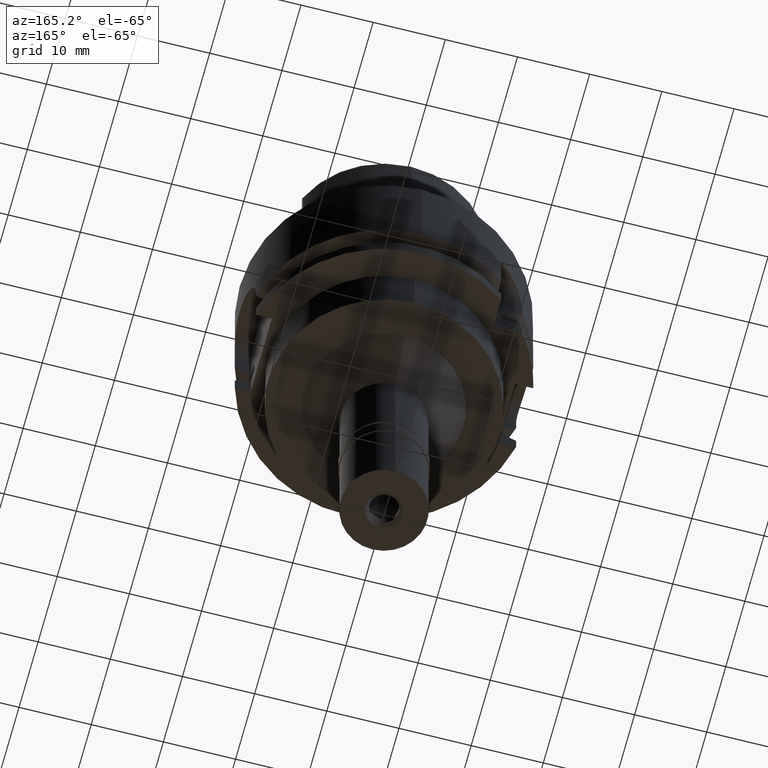
[diagram: clean part render]
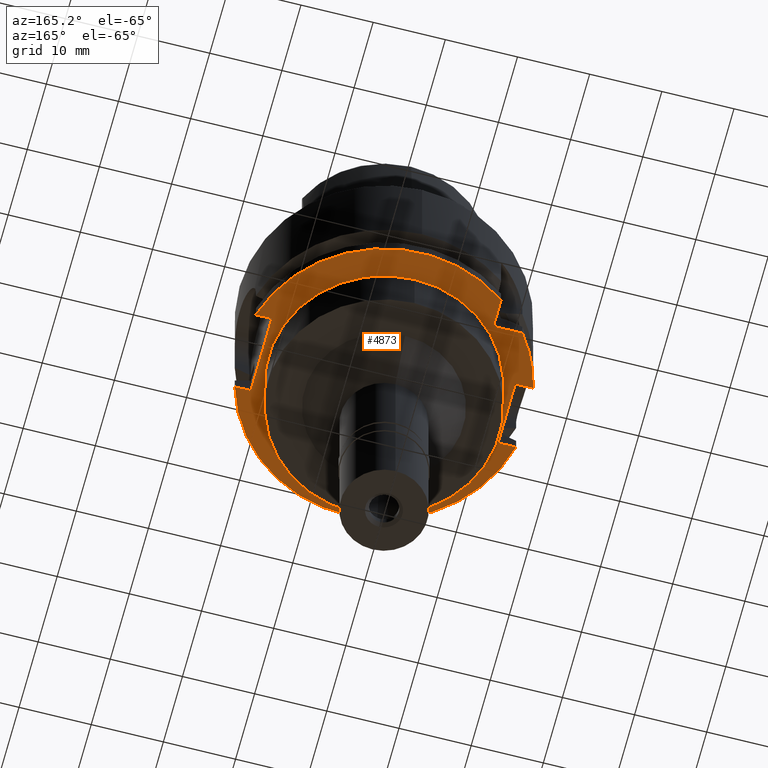
[diagram: same view with one face highlighted and labeled with its STEP entity id]
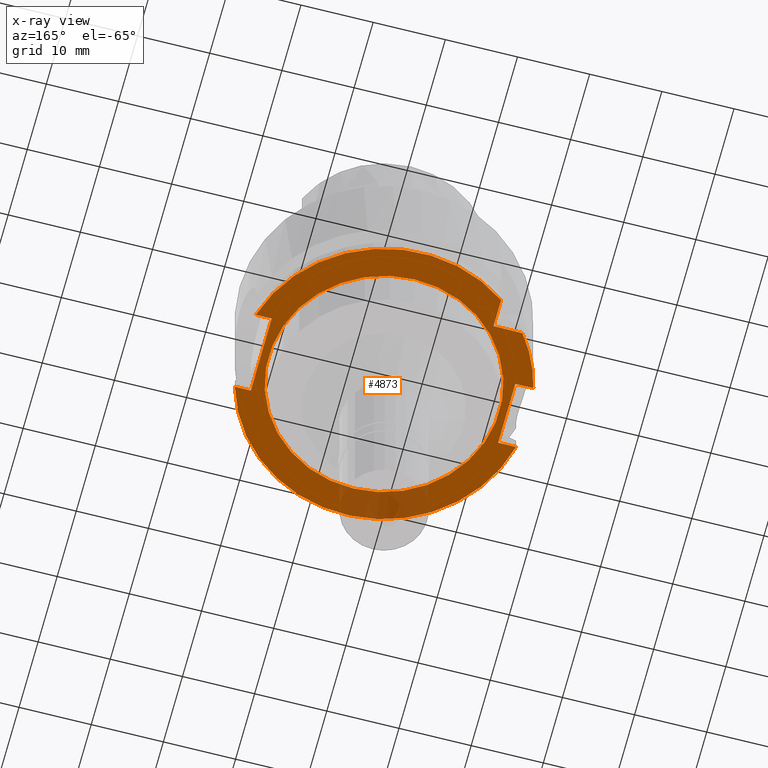
[diagram: x-ray of the same camera — body ghosted, the highlighted face saturated]
A machine part, auxiliary view. The second image highlights one B-rep face of the part: STEP entity #4873.
The next image is the same camera in x-ray: the body ghosted, the highlighted face saturated — about 13% of this face is hidden behind the body in this view.
In plain terms, the highlighted planar face has unit normal (0, 0, 1).
Its self-contained STEP definition (entity closure, byte-faithful):
#24 = VECTOR ( 'NONE', #2472, 1000.000000000000000 ) ;
#137 = ORIENTED_EDGE ( 'NONE', *, *, #2545, .T. ) ;
#210 = EDGE_CURVE ( 'NONE', #4422, #1580, #4544, .T. ) ;
#297 = CARTESIAN_POINT ( 'NONE',  ( 0.0000000000000000000, 0.0000000000000000000, -20.00000000000000000 ) ) ;
#316 = EDGE_CURVE ( 'NONE', #5261, #2449, #2884, .T. ) ;
#344 = LINE ( 'NONE', #4893, #1856 ) ;
#425 = CARTESIAN_POINT ( 'NONE',  ( -19.48717526991000071, -4.500000000000000000, -20.00000000000000000 ) ) ;
#427 = VERTEX_POINT ( 'NONE', #2514 ) ;
#457 = AXIS2_PLACEMENT_3D ( 'NONE', #4179, #794, #3407 ) ;
#463 = VECTOR ( 'NONE', #3894, 1000.000000000000000 ) ;
#510 = LINE ( 'NONE', #5006, #3440 ) ;
#541 = CIRCLE ( 'NONE', #3957, 20.00000000000000000 ) ;
#602 = VERTEX_POINT ( 'NONE', #2041 ) ;
#628 = EDGE_CURVE ( 'NONE', #1354, #1218, #4155, .T. ) ;
#682 = CARTESIAN_POINT ( 'NONE',  ( -19.48717526991000071, 4.500000000000000000, -20.00000000000000000 ) ) ;
#736 = DIRECTION ( 'NONE',  ( 0.0000000000000000000, -1.000000000000000000, 0.0000000000000000000 ) ) ;
#776 = LINE ( 'NONE', #2440, #4490 ) ;
#794 = DIRECTION ( 'NONE',  ( 0.0000000000000000000, 0.0000000000000000000, -1.000000000000000000 ) ) ;
#795 = AXIS2_PLACEMENT_3D ( 'NONE', #4108, #5359, #3612 ) ;
#843 = DIRECTION ( 'NONE',  ( 1.000000000000000000, 0.0000000000000000000, 0.0000000000000000000 ) ) ;
#861 = AXIS2_PLACEMENT_3D ( 'NONE', #297, #2863, #1187 ) ;
#867 = ORIENTED_EDGE ( 'NONE', *, *, #1419, .F. ) ;
#966 = VERTEX_POINT ( 'NONE', #4388 ) ;
#1162 = DIRECTION ( 'NONE',  ( -1.000000000000000000, 2.550307935358999985E-14, 0.0000000000000000000 ) ) ;
#1187 = DIRECTION ( 'NONE',  ( -0.8000000000000000444, 0.5999999999999999778, 0.0000000000000000000 ) ) ;
#1218 = VERTEX_POINT ( 'NONE', #2849 ) ;
#1299 = CARTESIAN_POINT ( 'NONE',  ( 0.0000000000000000000, 0.0000000000000000000, -20.00000000000000000 ) ) ;
#1300 = VECTOR ( 'NONE', #3762, 1000.000000000000000 ) ;
#1332 = CARTESIAN_POINT ( 'NONE',  ( -17.00000000000000000, 4.500000000000000000, -20.00000000000000000 ) ) ;
#1354 = VERTEX_POINT ( 'NONE', #2554 ) ;
#1419 = EDGE_CURVE ( 'NONE', #5261, #1218, #541, .T. ) ;
#1458 = EDGE_LOOP ( 'NONE', ( #2937, #2165 ) ) ;
#1551 = ORIENTED_EDGE ( 'NONE', *, *, #2592, .F. ) ;
#1580 = VERTEX_POINT ( 'NONE', #682 ) ;
#1600 = CARTESIAN_POINT ( 'NONE',  ( 17.00000000000000000, 5.500000000000000000, -20.00000000000000000 ) ) ;
#1648 = EDGE_CURVE ( 'NONE', #427, #1906, #510, .T. ) ;
#1777 = CIRCLE ( 'NONE', #457, 16.00000000000000000 ) ;
#1810 = CARTESIAN_POINT ( 'NONE',  ( 0.0000000000000000000, 16.00000000000000000, -20.00000000000000000 ) ) ;
#1856 = VECTOR ( 'NONE', #4079, 1000.000000000000000 ) ;
#1893 = EDGE_CURVE ( 'NONE', #966, #2115, #5178, .T. ) ;
#1906 = VERTEX_POINT ( 'NONE', #425 ) ;
#2041 = CARTESIAN_POINT ( 'NONE',  ( 19.22888452303000051, -5.500000000000000000, -20.00000000000000000 ) ) ;
#2048 = CARTESIAN_POINT ( 'NONE',  ( 0.0000000000000000000, 0.0000000000000000000, -20.00000000000000000 ) ) ;
#2115 = VERTEX_POINT ( 'NONE', #1810 ) ;
#2134 = FACE_OUTER_BOUND ( 'NONE', #4094, .T. ) ;
#2165 = ORIENTED_EDGE ( 'NONE', *, *, #1893, .F. ) ;
#2434 = ORIENTED_EDGE ( 'NONE', *, *, #1648, .F. ) ;
#2440 = CARTESIAN_POINT ( 'NONE',  ( -17.00000000000000000, 4.500000000000000000, -20.00000000000000000 ) ) ;
#2442 = VECTOR ( 'NONE', #1162, 1000.000000000000000 ) ;
#2449 = VERTEX_POINT ( 'NONE', #1600 ) ;
#2472 = DIRECTION ( 'NONE',  ( -1.000000000000000000, -2.191670881949000037E-14, 0.0000000000000000000 ) ) ;
#2482 = ORIENTED_EDGE ( 'NONE', *, *, #316, .T. ) ;
#2514 = CARTESIAN_POINT ( 'NONE',  ( -17.00000000000000000, -4.500000000000000000, -20.00000000000000000 ) ) ;
#2517 = CARTESIAN_POINT ( 'NONE',  ( 19.22888452303000051, 5.500000000000000000, -20.00000000000000000 ) ) ;
#2545 = EDGE_CURVE ( 'NONE', #3874, #1580, #344, .T. ) ;
#2554 = CARTESIAN_POINT ( 'NONE',  ( -12.00000000000000000, 12.00000000000000000, -20.00000000000000000 ) ) ;
#2569 = EDGE_CURVE ( 'NONE', #1906, #602, #3082, .T. ) ;
#2592 = EDGE_CURVE ( 'NONE', #3874, #427, #776, .T. ) ;
#2812 = AXIS2_PLACEMENT_3D ( 'NONE', #2048, #4585, #4558 ) ;
#2813 = LINE ( 'NONE', #3975, #3459 ) ;
#2849 = CARTESIAN_POINT ( 'NONE',  ( -12.00000000000000000, 16.00000000000000000, -20.00000000000000000 ) ) ;
#2859 = VERTEX_POINT ( 'NONE', #3580 ) ;
#2863 = DIRECTION ( 'NONE',  ( 0.0000000000000000000, 0.0000000000000000000, 1.000000000000000000 ) ) ;
#2884 = LINE ( 'NONE', #3248, #2442 ) ;
#2937 = ORIENTED_EDGE ( 'NONE', *, *, #3106, .F. ) ;
#2975 = DIRECTION ( 'NONE',  ( 0.0000000000000000000, 0.0000000000000000000, 1.000000000000000000 ) ) ;
#3082 = CIRCLE ( 'NONE', #795, 20.00000000000000000 ) ;
#3106 = EDGE_CURVE ( 'NONE', #2115, #966, #1777, .T. ) ;
#3248 = CARTESIAN_POINT ( 'NONE',  ( 19.22888452303000051, 5.500000000000000000, -20.00000000000000000 ) ) ;
#3363 = ORIENTED_EDGE ( 'NONE', *, *, #2569, .F. ) ;
#3371 = DIRECTION ( 'NONE',  ( -1.000000000000000000, 1.449839272533000158E-13, 0.0000000000000000000 ) ) ;
#3382 = ORIENTED_EDGE ( 'NONE', *, *, #210, .F. ) ;
#3406 = LINE ( 'NONE', #4312, #463 ) ;
#3407 = DIRECTION ( 'NONE',  ( 0.0000000000000000000, 1.000000000000000000, 0.0000000000000000000 ) ) ;
#3440 = VECTOR ( 'NONE', #3371, 1000.000000000000000 ) ;
#3459 = VECTOR ( 'NONE', #736, 1000.000000000000000 ) ;
#3580 = CARTESIAN_POINT ( 'NONE',  ( 17.00000000000000000, -5.500000000000000000, -20.00000000000000000 ) ) ;
#3612 = DIRECTION ( 'NONE',  ( 0.0000000000000000000, -1.000000000000000000, 0.0000000000000000000 ) ) ;
#3701 = CARTESIAN_POINT ( 'NONE',  ( 0.0000000000000000000, 0.0000000000000000000, -20.00000000000000000 ) ) ;
#3732 = EDGE_CURVE ( 'NONE', #2449, #2859, #2813, .T. ) ;
#3762 = DIRECTION ( 'NONE',  ( 0.0000000000000000000, 1.000000000000000000, 0.0000000000000000000 ) ) ;
#3771 = AXIS2_PLACEMENT_3D ( 'NONE', #1299, #2975, #843 ) ;
#3869 = EDGE_CURVE ( 'NONE', #1354, #4422, #3406, .T. ) ;
#3874 = VERTEX_POINT ( 'NONE', #1332 ) ;
#3894 = DIRECTION ( 'NONE',  ( -1.000000000000000000, 0.0000000000000000000, 0.0000000000000000000 ) ) ;
#3906 = ORIENTED_EDGE ( 'NONE', *, *, #628, .T. ) ;
#3957 = AXIS2_PLACEMENT_3D ( 'NONE', #3701, #4879, #4516 ) ;
#3969 = ORIENTED_EDGE ( 'NONE', *, *, #3732, .T. ) ;
#3975 = CARTESIAN_POINT ( 'NONE',  ( 17.00000000000000000, 5.500000000000000000, -20.00000000000000000 ) ) ;
#3988 = ORIENTED_EDGE ( 'NONE', *, *, #3869, .F. ) ;
#4070 = ORIENTED_EDGE ( 'NONE', *, *, #5151, .F. ) ;
#4079 = DIRECTION ( 'NONE',  ( -1.000000000000000000, -1.449839272533000158E-13, 0.0000000000000000000 ) ) ;
#4094 = EDGE_LOOP ( 'NONE', ( #867, #2482, #3969, #4070, #3363, #2434, #1551, #137, #3382, #3988, #3906 ) ) ;
#4108 = CARTESIAN_POINT ( 'NONE',  ( 0.0000000000000000000, 0.0000000000000000000, -20.00000000000000000 ) ) ;
#4155 = LINE ( 'NONE', #4548, #1300 ) ;
#4179 = CARTESIAN_POINT ( 'NONE',  ( 0.0000000000000000000, 0.0000000000000000000, -20.00000000000000000 ) ) ;
#4245 = LINE ( 'NONE', #4536, #24 ) ;
#4312 = CARTESIAN_POINT ( 'NONE',  ( -12.00000000000000000, 12.00000000000000000, -20.00000000000000000 ) ) ;
#4388 = CARTESIAN_POINT ( 'NONE',  ( 0.0000000000000000000, -16.00000000000000000, -20.00000000000000000 ) ) ;
#4422 = VERTEX_POINT ( 'NONE', #5279 ) ;
#4490 = VECTOR ( 'NONE', #5281, 1000.000000000000000 ) ;
#4516 = DIRECTION ( 'NONE',  ( 0.0000000000000000000, 1.000000000000000000, 0.0000000000000000000 ) ) ;
#4536 = CARTESIAN_POINT ( 'NONE',  ( 19.22888452303000051, -5.500000000000000000, -20.00000000000000000 ) ) ;
#4544 = CIRCLE ( 'NONE', #861, 20.00000000000000000 ) ;
#4548 = CARTESIAN_POINT ( 'NONE',  ( -12.00000000000000000, 12.00000000000000000, -20.00000000000000000 ) ) ;
#4558 = DIRECTION ( 'NONE',  ( 0.0000000000000000000, -1.000000000000000000, 0.0000000000000000000 ) ) ;
#4585 = DIRECTION ( 'NONE',  ( 0.0000000000000000000, 0.0000000000000000000, -1.000000000000000000 ) ) ;
#4625 = FACE_BOUND ( 'NONE', #1458, .T. ) ;
#4873 = ADVANCED_FACE ( 'NONE', ( #2134, #4625 ), #5093, .F. ) ;
#4879 = DIRECTION ( 'NONE',  ( 0.0000000000000000000, 0.0000000000000000000, 1.000000000000000000 ) ) ;
#4893 = CARTESIAN_POINT ( 'NONE',  ( -17.00000000000000000, 4.500000000000000000, -20.00000000000000000 ) ) ;
#5006 = CARTESIAN_POINT ( 'NONE',  ( -17.00000000000000000, -4.500000000000000000, -20.00000000000000000 ) ) ;
#5093 = PLANE ( 'NONE',  #3771 ) ;
#5151 = EDGE_CURVE ( 'NONE', #602, #2859, #4245, .T. ) ;
#5178 = CIRCLE ( 'NONE', #2812, 16.00000000000000000 ) ;
#5261 = VERTEX_POINT ( 'NONE', #2517 ) ;
#5279 = CARTESIAN_POINT ( 'NONE',  ( -16.00000000000000000, 12.00000000000000000, -20.00000000000000000 ) ) ;
#5281 = DIRECTION ( 'NONE',  ( 0.0000000000000000000, -1.000000000000000000, 0.0000000000000000000 ) ) ;
#5359 = DIRECTION ( 'NONE',  ( 0.0000000000000000000, 0.0000000000000000000, 1.000000000000000000 ) ) ;